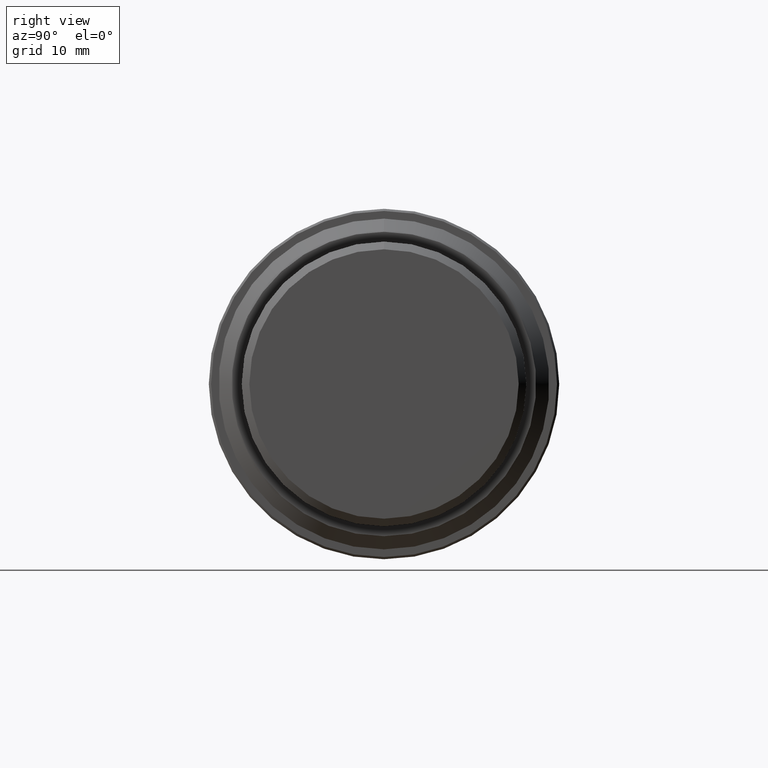
[diagram: clean part render]
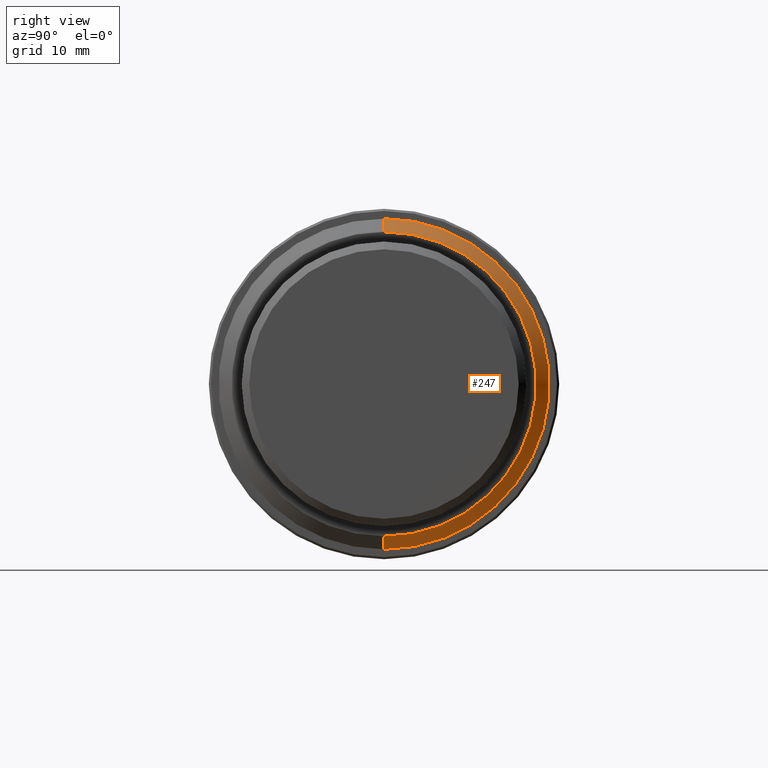
[diagram: same view with one face highlighted and labeled with its STEP entity id]
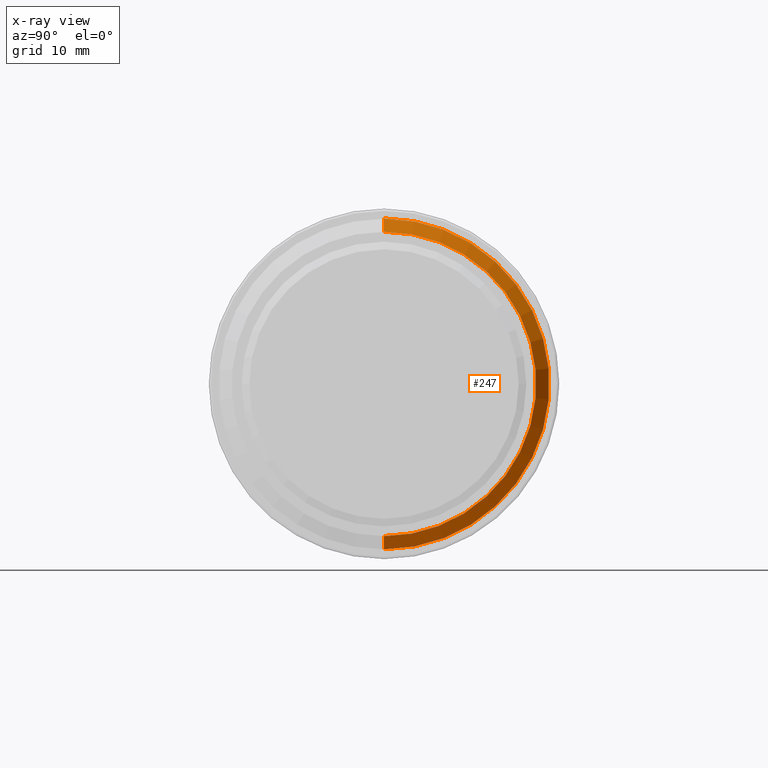
[diagram: x-ray of the same camera — body ghosted, the highlighted face saturated]
A machine part, right view. The second image highlights one B-rep face of the part: STEP entity #247.
The next image is the same camera in x-ray: the body ghosted, the highlighted face saturated — about 0% of this face is hidden behind the body in this view.
In plain terms, the highlighted conical surface has half-angle 45 deg.
Its self-contained STEP definition (entity closure, byte-faithful):
#11 = CONICAL_SURFACE ( 'NONE', #739, 15.10000000000000142, 0.7853981633974476129 ) ;
#66 = FACE_OUTER_BOUND ( 'NONE', #1200, .T. ) ;
#71 = VERTEX_POINT ( 'NONE', #331 ) ;
#86 = ORIENTED_EDGE ( 'NONE', *, *, #1253, .F. ) ;
#163 = LINE ( 'NONE', #990, #1414 ) ;
#232 = VERTEX_POINT ( 'NONE', #771 ) ;
#247 = ADVANCED_FACE ( 'NONE', ( #66 ), #11, .T. ) ;
#288 = LINE ( 'NONE', #435, #791 ) ;
#295 = CARTESIAN_POINT ( 'NONE',  ( 44.97349364412799844, 0.000000000000000000, 0.000000000000000000 ) ) ;
#303 = DIRECTION ( 'NONE',  ( -0.7071067811865480168, 0.7071067811865470176, 0.000000000000000000 ) ) ;
#306 = CIRCLE ( 'NONE', #934, 13.89999999999999858 ) ;
#324 = EDGE_CURVE ( 'NONE', #1230, #71, #1491, .T. ) ;
#331 = CARTESIAN_POINT ( 'NONE',  ( 43.77349364412799559, -15.10000000000000142, -1.849216666712500185E-15 ) ) ;
#342 = EDGE_CURVE ( 'NONE', #1261, #232, #306, .T. ) ;
#377 = AXIS2_PLACEMENT_3D ( 'NONE', #546, #781, #1520 ) ;
#386 = EDGE_CURVE ( 'NONE', #1261, #1230, #288, .T. ) ;
#412 = DIRECTION ( 'NONE',  ( -1.000000000000000000, 0.000000000000000000, 0.000000000000000000 ) ) ;
#435 = CARTESIAN_POINT ( 'NONE',  ( 43.77349364412799559, 15.10000000000000142, 0.000000000000000000 ) ) ;
#488 = ORIENTED_EDGE ( 'NONE', *, *, #342, .F. ) ;
#494 = CARTESIAN_POINT ( 'NONE',  ( 44.97349364412799844, 13.89999999999999858, 0.000000000000000000 ) ) ;
#520 = DIRECTION ( 'NONE',  ( -0.7071067811865480168, -0.7071067811865470176, -8.659560562354929160E-17 ) ) ;
#546 = CARTESIAN_POINT ( 'NONE',  ( 43.77349364412799559, 0.000000000000000000, 0.000000000000000000 ) ) ;
#655 = CARTESIAN_POINT ( 'NONE',  ( 43.77349364412799559, 0.000000000000000000, 0.000000000000000000 ) ) ;
#659 = ORIENTED_EDGE ( 'NONE', *, *, #386, .T. ) ;
#739 = AXIS2_PLACEMENT_3D ( 'NONE', #655, #412, #1390 ) ;
#771 = CARTESIAN_POINT ( 'NONE',  ( 44.97349364412799844, -13.89999999999999858, -1.702259050814819900E-15 ) ) ;
#781 = DIRECTION ( 'NONE',  ( 1.000000000000000000, 0.000000000000000000, 0.000000000000000000 ) ) ;
#791 = VECTOR ( 'NONE', #303, 1000.000000000000000 ) ;
#836 = ORIENTED_EDGE ( 'NONE', *, *, #324, .T. ) ;
#934 = AXIS2_PLACEMENT_3D ( 'NONE', #295, #1151, #1033 ) ;
#990 = CARTESIAN_POINT ( 'NONE',  ( 43.77349364412799559, -15.10000000000000142, -1.849216666712500185E-15 ) ) ;
#1033 = DIRECTION ( 'NONE',  ( 0.000000000000000000, 1.000000000000000000, 0.000000000000000000 ) ) ;
#1151 = DIRECTION ( 'NONE',  ( 1.000000000000000000, 0.000000000000000000, 0.000000000000000000 ) ) ;
#1200 = EDGE_LOOP ( 'NONE', ( #659, #836, #86, #488 ) ) ;
#1226 = CARTESIAN_POINT ( 'NONE',  ( 43.77349364412799559, 15.10000000000000142, 0.000000000000000000 ) ) ;
#1230 = VERTEX_POINT ( 'NONE', #1226 ) ;
#1253 = EDGE_CURVE ( 'NONE', #232, #71, #163, .T. ) ;
#1261 = VERTEX_POINT ( 'NONE', #494 ) ;
#1390 = DIRECTION ( 'NONE',  ( 0.000000000000000000, 1.000000000000000000, 0.000000000000000000 ) ) ;
#1414 = VECTOR ( 'NONE', #520, 1000.000000000000000 ) ;
#1491 = CIRCLE ( 'NONE', #377, 15.10000000000000142 ) ;
#1520 = DIRECTION ( 'NONE',  ( 0.000000000000000000, 1.000000000000000000, 0.000000000000000000 ) ) ;